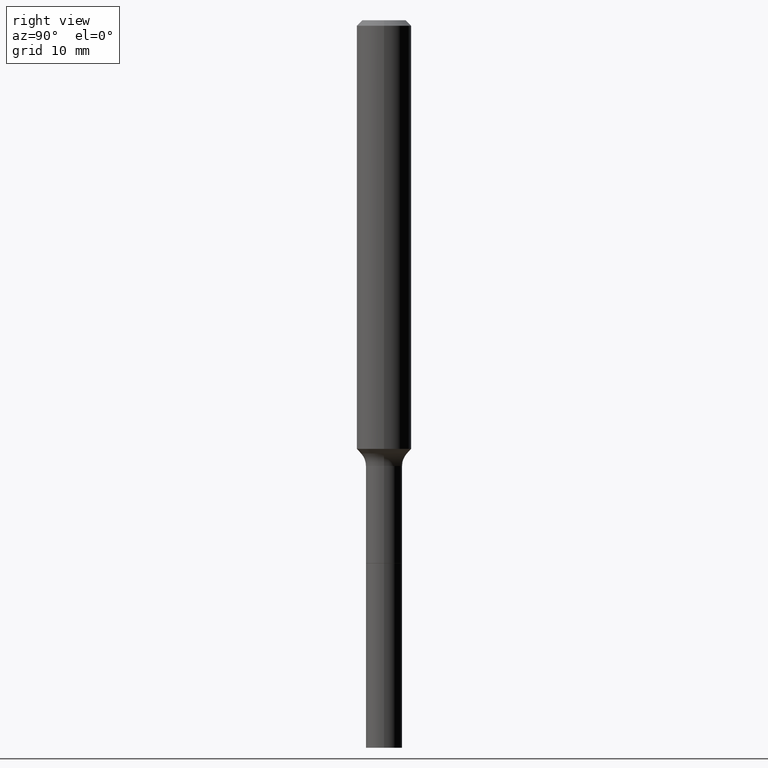
[diagram: clean part render]
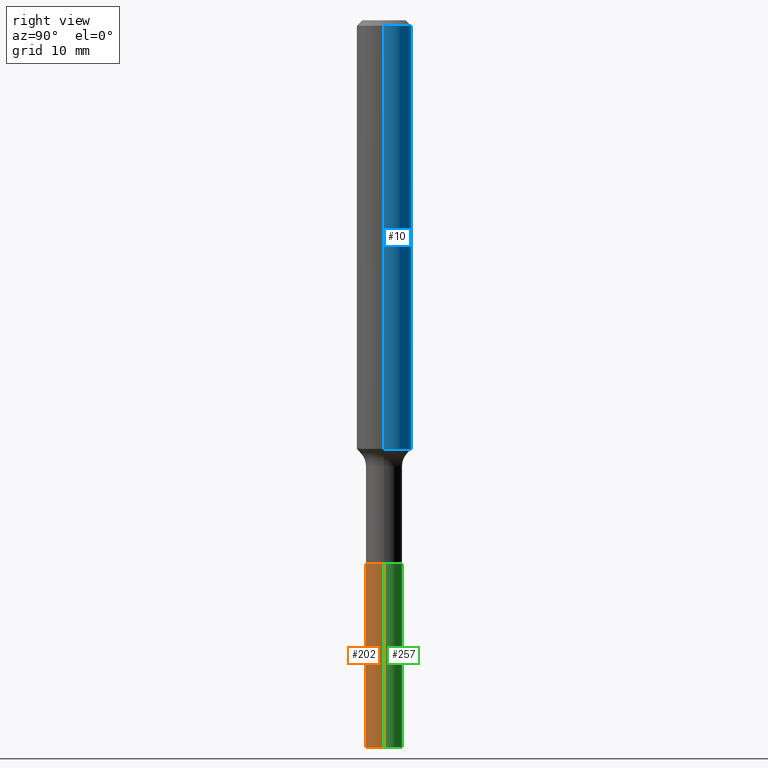
[diagram: same view with three faces highlighted in distinct colors, each labeled with its STEP entity id]
A machine part, right view with three faces highlighted in distinct colors.
Their STEP definitions:

[orange] entity #202 — the highlighted cylindrical surface (edge-blend (fillet) strip) has radius 2.0003 mm, axis along (-0, 0, 1).
#8 = EDGE_LOOP ( 'NONE', ( #286, #362, #477, #291 ) ) ;
#30 = CARTESIAN_POINT ( 'NONE',  ( -0.07875000000000018097, -9.042370425541453780E-15, -3.149600000000000399 ) ) ;
#42 = CARTESIAN_POINT ( 'NONE',  ( 7.702248551960706711E-29, -1.099676962482037231E-14, -3.149600000000000399 ) ) ;
#56 = VECTOR ( 'NONE', #320, 39.37007874015748143 ) ;
#101 = EDGE_CURVE ( 'NONE', #125, #243, #270, .T. ) ;
#113 = CARTESIAN_POINT ( 'NONE',  ( 0.07875000000000000056, -8.756984345952492512E-15, -2.350600000000000467 ) ) ;
#125 = VERTEX_POINT ( 'NONE', #232 ) ;
#153 = DIRECTION ( 'NONE',  ( -2.445468806185136597E-29, 3.491481338843145583E-15, 1.000000000000000000 ) ) ;
#163 = VERTEX_POINT ( 'NONE', #30 ) ;
#192 = CARTESIAN_POINT ( 'NONE',  ( 5.748318975818783261E-29, -8.207076035084699166E-15, -2.350600000000000467 ) ) ;
#202 = ADVANCED_FACE ( 'NONE', ( #385 ), #470, .T. ) ;
#205 = DIRECTION ( 'NONE',  ( -2.445468806185136597E-29, 3.491481338843145583E-15, 1.000000000000000000 ) ) ;
#232 = CARTESIAN_POINT ( 'NONE',  ( 0.07875000000000018097, -1.154667793568816723E-14, -3.149600000000000399 ) ) ;
#243 = VERTEX_POINT ( 'NONE', #113 ) ;
#246 = EDGE_CURVE ( 'NONE', #458, #243, #478, .T. ) ;
#251 = AXIS2_PLACEMENT_3D ( 'NONE', #42, #447, #252 ) ;
#252 = DIRECTION ( 'NONE',  ( 1.000000000000000000, -6.982962677686269866E-15, 0.000000000000000000 ) ) ;
#270 = LINE ( 'NONE', #392, #355 ) ;
#272 = CARTESIAN_POINT ( 'NONE',  ( 5.748318975818783261E-29, -8.207076035084699166E-15, -2.350600000000000467 ) ) ;
#286 = ORIENTED_EDGE ( 'NONE', *, *, #383, .F. ) ;
#291 = ORIENTED_EDGE ( 'NONE', *, *, #246, .F. ) ;
#314 = DIRECTION ( 'NONE',  ( 1.000000000000000000, -6.982962677686254878E-15, 0.000000000000000000 ) ) ;
#320 = DIRECTION ( 'NONE',  ( -2.445468806185136877E-29, 3.491481338843145188E-15, 1.000000000000000000 ) ) ;
#324 = AXIS2_PLACEMENT_3D ( 'NONE', #272, #205, #394 ) ;
#350 = DIRECTION ( 'NONE',  ( -2.445468806185136877E-29, 3.491481338843145188E-15, 1.000000000000000000 ) ) ;
#355 = VECTOR ( 'NONE', #350, 39.37007874015748143 ) ;
#358 = LINE ( 'NONE', #515, #56 ) ;
#362 = ORIENTED_EDGE ( 'NONE', *, *, #391, .T. ) ;
#383 = EDGE_CURVE ( 'NONE', #163, #458, #358, .T. ) ;
#385 = FACE_OUTER_BOUND ( 'NONE', #8, .T. ) ;
#391 = EDGE_CURVE ( 'NONE', #163, #125, #489, .T. ) ;
#392 = CARTESIAN_POINT ( 'NONE',  ( 0.07875000000000008382, -8.756984345952492512E-15, -2.350600000000000467 ) ) ;
#393 = AXIS2_PLACEMENT_3D ( 'NONE', #192, #153, #314 ) ;
#394 = DIRECTION ( 'NONE',  ( 1.000000000000000000, -6.982962677686261977E-15, 0.000000000000000000 ) ) ;
#409 = CARTESIAN_POINT ( 'NONE',  ( -0.07875000000000000056, -9.042370425541456936E-15, -2.350600000000000467 ) ) ;
#447 = DIRECTION ( 'NONE',  ( -2.445468806185136597E-29, 3.491481338843145583E-15, 1.000000000000000000 ) ) ;
#458 = VERTEX_POINT ( 'NONE', #409 ) ;
#470 = CYLINDRICAL_SURFACE ( 'NONE', #393, 0.07875000000000008382 ) ;
#477 = ORIENTED_EDGE ( 'NONE', *, *, #101, .T. ) ;
#478 = CIRCLE ( 'NONE', #324, 0.07875000000000000056 ) ;
#489 = CIRCLE ( 'NONE', #251, 0.07875000000000018097 ) ;
#515 = CARTESIAN_POINT ( 'NONE',  ( -0.07875000000000008382, -7.647523630673619575E-15, -2.350600000000000467 ) ) ;

[blue] entity #10 — the highlighted cylindrical surface (edge-blend (fillet) strip) has radius 2.9997 mm, axis along (-0, 0, 1).
#1 = VECTOR ( 'NONE', #356, 39.37007874015748143 ) ;
#10 = ADVANCED_FACE ( 'NONE', ( #102 ), #337, .T. ) ;
#23 = CARTESIAN_POINT ( 'NONE',  ( 5.776197320209327532E-31, -8.246878922347559293E-17, -0.02362000000000014088 ) ) ;
#38 = ORIENTED_EDGE ( 'NONE', *, *, #146, .F. ) ;
#52 = VERTEX_POINT ( 'NONE', #267 ) ;
#70 = AXIS2_PLACEMENT_3D ( 'NONE', #23, #229, #110 ) ;
#73 = CARTESIAN_POINT ( 'NONE',  ( -0.1181000000000001077, 8.391509709326790846E-16, -5.809262341591049389E-30 ) ) ;
#80 = CARTESIAN_POINT ( 'NONE',  ( 4.538519765556305083E-29, -6.479803392843178830E-15, -1.855889453211333029 ) ) ;
#85 = DIRECTION ( 'NONE',  ( -2.445468806185136597E-29, 3.491481338843145583E-15, 1.000000000000000000 ) ) ;
#102 = FACE_OUTER_BOUND ( 'NONE', #359, .T. ) ;
#108 = EDGE_CURVE ( 'NONE', #52, #247, #390, .T. ) ;
#110 = DIRECTION ( 'NONE',  ( 1.000000000000000000, -6.982962677686266711E-15, 0.000000000000000000 ) ) ;
#120 = ORIENTED_EDGE ( 'NONE', *, *, #345, .T. ) ;
#131 = ORIENTED_EDGE ( 'NONE', *, *, #512, .F. ) ;
#146 = EDGE_CURVE ( 'NONE', #220, #247, #300, .T. ) ;
#173 = DIRECTION ( 'NONE',  ( -2.445468806185136877E-29, 3.491481338843145188E-15, 1.000000000000000000 ) ) ;
#213 = CARTESIAN_POINT ( 'NONE',  ( 0.1181000000000002187, -7.304491285077929459E-15, -1.855889453211333029 ) ) ;
#217 = AXIS2_PLACEMENT_3D ( 'NONE', #499, #302, #344 ) ;
#220 = VERTEX_POINT ( 'NONE', #503 ) ;
#229 = DIRECTION ( 'NONE',  ( -2.445468806185136597E-29, 3.491481338843145583E-15, 1.000000000000000000 ) ) ;
#242 = CARTESIAN_POINT ( 'NONE',  ( -0.1180999999999999966, -2.441985120100647369E-15, -0.02362000000000014088 ) ) ;
#247 = VERTEX_POINT ( 'NONE', #242 ) ;
#248 = DIRECTION ( 'NONE',  ( 1.000000000000000000, -6.982962677686267499E-15, 0.000000000000000000 ) ) ;
#266 = LINE ( 'NONE', #331, #480 ) ;
#267 = CARTESIAN_POINT ( 'NONE',  ( -0.1181000000000002187, -5.640652421910499055E-15, -1.855889453211333029 ) ) ;
#277 = CIRCLE ( 'NONE', #375, 0.1181000000000002187 ) ;
#300 = CIRCLE ( 'NONE', #70, 0.1180999999999999966 ) ;
#302 = DIRECTION ( 'NONE',  ( -2.445468806185136597E-29, 3.491481338843145583E-15, 1.000000000000000000 ) ) ;
#331 = CARTESIAN_POINT ( 'NONE',  ( 0.1181000000000001077, -8.246878922347488542E-16, 5.758764772215005345E-30 ) ) ;
#332 = ORIENTED_EDGE ( 'NONE', *, *, #108, .T. ) ;
#337 = CYLINDRICAL_SURFACE ( 'NONE', #217, 0.1181000000000001077 ) ;
#344 = DIRECTION ( 'NONE',  ( 1.000000000000000000, -6.982962677686266711E-15, 4.876176775795935793E-29 ) ) ;
#345 = EDGE_CURVE ( 'NONE', #368, #52, #277, .T. ) ;
#356 = DIRECTION ( 'NONE',  ( -2.445468806185136877E-29, 3.491481338843145188E-15, 1.000000000000000000 ) ) ;
#359 = EDGE_LOOP ( 'NONE', ( #120, #332, #38, #131 ) ) ;
#368 = VERTEX_POINT ( 'NONE', #213 ) ;
#375 = AXIS2_PLACEMENT_3D ( 'NONE', #80, #85, #248 ) ;
#390 = LINE ( 'NONE', #73, #1 ) ;
#480 = VECTOR ( 'NONE', #173, 39.37007874015748143 ) ;
#499 = CARTESIAN_POINT ( 'NONE',  ( 0.000000000000000000, 0.000000000000000000, 0.000000000000000000 ) ) ;
#503 = CARTESIAN_POINT ( 'NONE',  ( 0.1180999999999999966, -9.071566814582237199E-16, -0.02362000000000014088 ) ) ;
#512 = EDGE_CURVE ( 'NONE', #368, #220, #266, .T. ) ;

[green] entity #257 — the highlighted cylindrical surface (edge-blend (fillet) strip) has radius 2.0003 mm, axis along (-0, 0, 1).
#27 = AXIS2_PLACEMENT_3D ( 'NONE', #288, #322, #363 ) ;
#30 = CARTESIAN_POINT ( 'NONE',  ( -0.07875000000000018097, -9.042370425541453780E-15, -3.149600000000000399 ) ) ;
#37 = FACE_OUTER_BOUND ( 'NONE', #224, .T. ) ;
#45 = CIRCLE ( 'NONE', #27, 0.07875000000000018097 ) ;
#46 = DIRECTION ( 'NONE',  ( -2.445468806185136597E-29, 3.491481338843145583E-15, 1.000000000000000000 ) ) ;
#56 = VECTOR ( 'NONE', #320, 39.37007874015748143 ) ;
#58 = ORIENTED_EDGE ( 'NONE', *, *, #101, .F. ) ;
#101 = EDGE_CURVE ( 'NONE', #125, #243, #270, .T. ) ;
#113 = CARTESIAN_POINT ( 'NONE',  ( 0.07875000000000000056, -8.756984345952492512E-15, -2.350600000000000467 ) ) ;
#124 = DIRECTION ( 'NONE',  ( -2.445468806185136597E-29, 3.491481338843145583E-15, 1.000000000000000000 ) ) ;
#125 = VERTEX_POINT ( 'NONE', #232 ) ;
#163 = VERTEX_POINT ( 'NONE', #30 ) ;
#203 = DIRECTION ( 'NONE',  ( 1.000000000000000000, -6.982962677686254878E-15, 0.000000000000000000 ) ) ;
#207 = CARTESIAN_POINT ( 'NONE',  ( 5.748318975818783261E-29, -8.207076035084699166E-15, -2.350600000000000467 ) ) ;
#218 = AXIS2_PLACEMENT_3D ( 'NONE', #239, #46, #282 ) ;
#222 = ORIENTED_EDGE ( 'NONE', *, *, #383, .T. ) ;
#224 = EDGE_LOOP ( 'NONE', ( #377, #222, #240, #58 ) ) ;
#232 = CARTESIAN_POINT ( 'NONE',  ( 0.07875000000000018097, -1.154667793568816723E-14, -3.149600000000000399 ) ) ;
#239 = CARTESIAN_POINT ( 'NONE',  ( 5.748318975818783261E-29, -8.207076035084699166E-15, -2.350600000000000467 ) ) ;
#240 = ORIENTED_EDGE ( 'NONE', *, *, #361, .F. ) ;
#243 = VERTEX_POINT ( 'NONE', #113 ) ;
#245 = CYLINDRICAL_SURFACE ( 'NONE', #307, 0.07875000000000008382 ) ;
#257 = ADVANCED_FACE ( 'NONE', ( #37 ), #245, .T. ) ;
#270 = LINE ( 'NONE', #392, #355 ) ;
#278 = CIRCLE ( 'NONE', #218, 0.07875000000000000056 ) ;
#282 = DIRECTION ( 'NONE',  ( 1.000000000000000000, -6.982962677686261977E-15, 0.000000000000000000 ) ) ;
#288 = CARTESIAN_POINT ( 'NONE',  ( 7.702248551960706711E-29, -1.099676962482037231E-14, -3.149600000000000399 ) ) ;
#307 = AXIS2_PLACEMENT_3D ( 'NONE', #207, #124, #203 ) ;
#319 = EDGE_CURVE ( 'NONE', #125, #163, #45, .T. ) ;
#320 = DIRECTION ( 'NONE',  ( -2.445468806185136877E-29, 3.491481338843145188E-15, 1.000000000000000000 ) ) ;
#322 = DIRECTION ( 'NONE',  ( -2.445468806185136597E-29, 3.491481338843145583E-15, 1.000000000000000000 ) ) ;
#350 = DIRECTION ( 'NONE',  ( -2.445468806185136877E-29, 3.491481338843145188E-15, 1.000000000000000000 ) ) ;
#355 = VECTOR ( 'NONE', #350, 39.37007874015748143 ) ;
#358 = LINE ( 'NONE', #515, #56 ) ;
#361 = EDGE_CURVE ( 'NONE', #243, #458, #278, .T. ) ;
#363 = DIRECTION ( 'NONE',  ( 1.000000000000000000, -6.982962677686269866E-15, 0.000000000000000000 ) ) ;
#377 = ORIENTED_EDGE ( 'NONE', *, *, #319, .T. ) ;
#383 = EDGE_CURVE ( 'NONE', #163, #458, #358, .T. ) ;
#392 = CARTESIAN_POINT ( 'NONE',  ( 0.07875000000000008382, -8.756984345952492512E-15, -2.350600000000000467 ) ) ;
#409 = CARTESIAN_POINT ( 'NONE',  ( -0.07875000000000000056, -9.042370425541456936E-15, -2.350600000000000467 ) ) ;
#458 = VERTEX_POINT ( 'NONE', #409 ) ;
#515 = CARTESIAN_POINT ( 'NONE',  ( -0.07875000000000008382, -7.647523630673619575E-15, -2.350600000000000467 ) ) ;